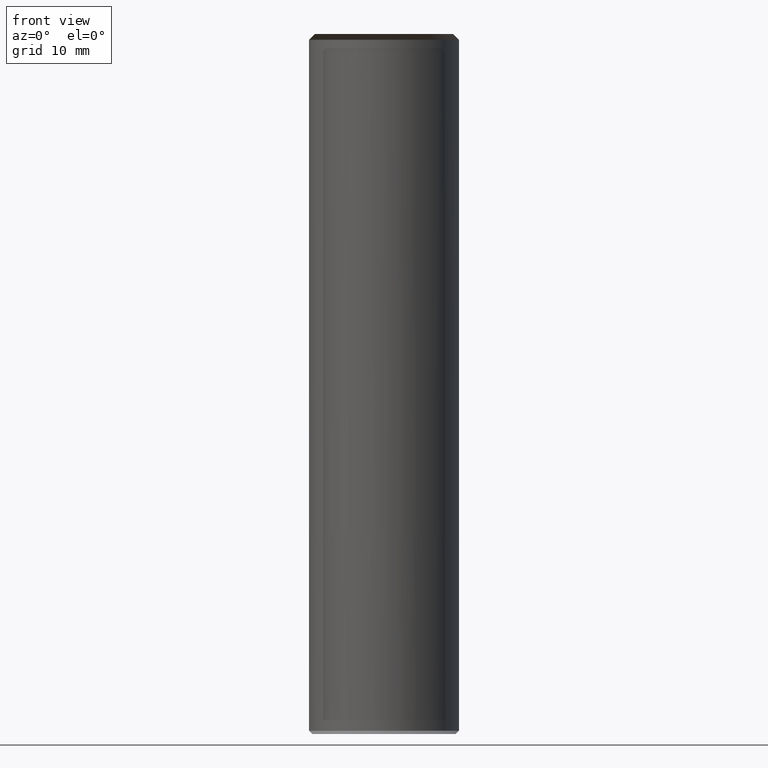
[diagram: clean part render]
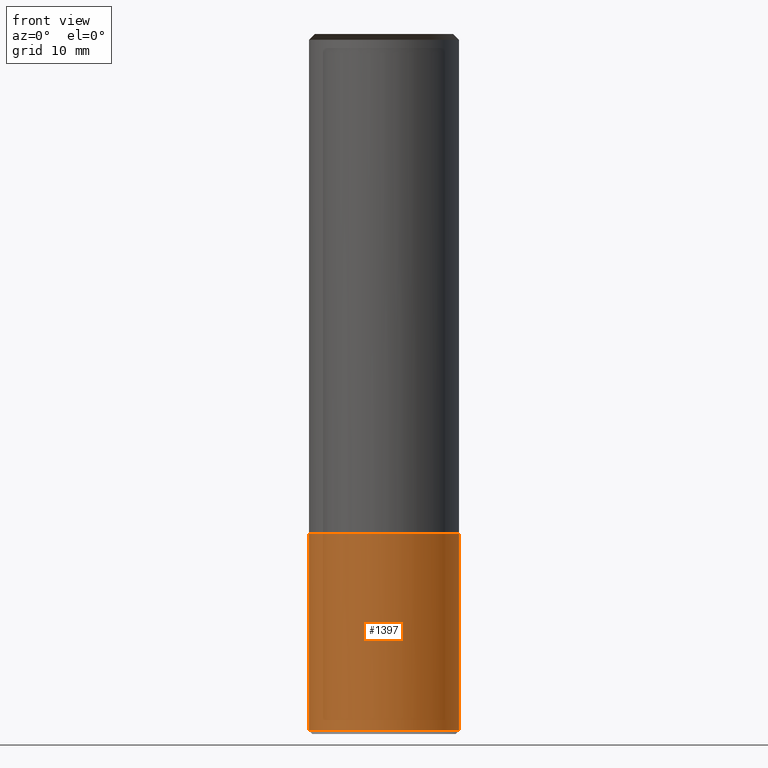
[diagram: same view with one face highlighted and labeled with its STEP entity id]
A machine part, front view. The second image highlights one B-rep face of the part: STEP entity #1397.
In plain terms, the highlighted face is a freeform B-spline surface patch.
Its self-contained STEP definition (entity closure, byte-faithful):
#1218=CARTESIAN_POINT('',(9.0,0.0,-23.601));
#1222=CARTESIAN_POINT('',(-9.0,0.0,-23.601));
#1223=CARTESIAN_POINT('',(9.0,0.0,-0.001));
#1227=CARTESIAN_POINT('',(-9.0,0.0,-0.001));
#1232=CARTESIAN_POINT('',(-9.0,-9.0,-23.601));
#1233=CARTESIAN_POINT('',(0.0,-9.0,-23.601));
#1234=CARTESIAN_POINT('',(9.0,-9.0,-23.601));
#1235=CARTESIAN_POINT('',(-9.0,-9.0,-0.001));
#1236=CARTESIAN_POINT('',(0.0,-9.0,-0.001));
#1237=CARTESIAN_POINT('',(9.0,-9.0,-0.001));
#1378=(
BOUNDED_SURFACE()
B_SPLINE_SURFACE(1,2,(
(#1222,#1232,#1233,#1234,#1218),
(#1227,#1235,#1236,#1237,#1223)
), .UNSPECIFIED.,.F.,.F.,.F.)
B_SPLINE_SURFACE_WITH_KNOTS((2,2),(3,2,3),(
0.0,1.0),(
0.0,0.5,1.0), .UNSPECIFIED.)
GEOMETRIC_REPRESENTATION_ITEM()
RATIONAL_B_SPLINE_SURFACE(((1.0,0.707106781187,1.0,0.707106781187,1.0),
(1.0,0.707106781187,1.0,0.707106781187,1.0)
))
REPRESENTATION_ITEM('')
SURFACE()
);
#1379=(
BOUNDED_CURVE()
B_SPLINE_CURVE(1,(#1227,#1222),.UNSPECIFIED.,.F.,.F.)
B_SPLINE_CURVE_WITH_KNOTS((2,2),
(0.0,1.0),.UNSPECIFIED.)
CURVE()
GEOMETRIC_REPRESENTATION_ITEM()
RATIONAL_B_SPLINE_CURVE((1.0,1.0))
REPRESENTATION_ITEM('')
);
#1380=(
BOUNDED_CURVE()
B_SPLINE_CURVE(2,(#1222,#1232,#1233,#1234,#1218),.UNSPECIFIED.,.F.,.F.)
B_SPLINE_CURVE_WITH_KNOTS((3,2,3),
(0.0,0.5,1.0),.UNSPECIFIED.)
CURVE()
GEOMETRIC_REPRESENTATION_ITEM()
RATIONAL_B_SPLINE_CURVE((1.0,0.707106781187,1.0,0.707106781187,1.0))
REPRESENTATION_ITEM('')
);
#1381=(
BOUNDED_CURVE()
B_SPLINE_CURVE(1,(#1218,#1223),.UNSPECIFIED.,.F.,.F.)
B_SPLINE_CURVE_WITH_KNOTS((2,2),
(0.0,1.0),.UNSPECIFIED.)
CURVE()
GEOMETRIC_REPRESENTATION_ITEM()
RATIONAL_B_SPLINE_CURVE((1.0,1.0))
REPRESENTATION_ITEM('')
);
#1382=(
BOUNDED_CURVE()
B_SPLINE_CURVE(2,(#1223,#1237,#1236,#1235,#1227),.UNSPECIFIED.,.F.,.F.)
B_SPLINE_CURVE_WITH_KNOTS((3,2,3),
(0.0,0.5,1.0),.UNSPECIFIED.)
CURVE()
GEOMETRIC_REPRESENTATION_ITEM()
RATIONAL_B_SPLINE_CURVE((1.0,0.707106781187,1.0,0.707106781187,1.0))
REPRESENTATION_ITEM('')
);
#1383=VERTEX_POINT('',#1218);
#1384=VERTEX_POINT('',#1222);
#1385=VERTEX_POINT('',#1223);
#1386=VERTEX_POINT('',#1227);
#1387=EDGE_CURVE('',#1386,#1384,#1379,.T.);
#1388=EDGE_CURVE('',#1384,#1383,#1380,.T.);
#1389=EDGE_CURVE('',#1383,#1385,#1381,.T.);
#1390=EDGE_CURVE('',#1385,#1386,#1382,.T.);
#1391=ORIENTED_EDGE('',*,*,#1387,.T.);
#1392=ORIENTED_EDGE('',*,*,#1388,.T.);
#1393=ORIENTED_EDGE('',*,*,#1389,.T.);
#1394=ORIENTED_EDGE('',*,*,#1390,.T.);
#1395=EDGE_LOOP('',(#1391,#1392,#1393,#1394));
#1396=FACE_OUTER_BOUND('',#1395,.T.);
#1397=ADVANCED_FACE('',(#1396),#1378,.T.);